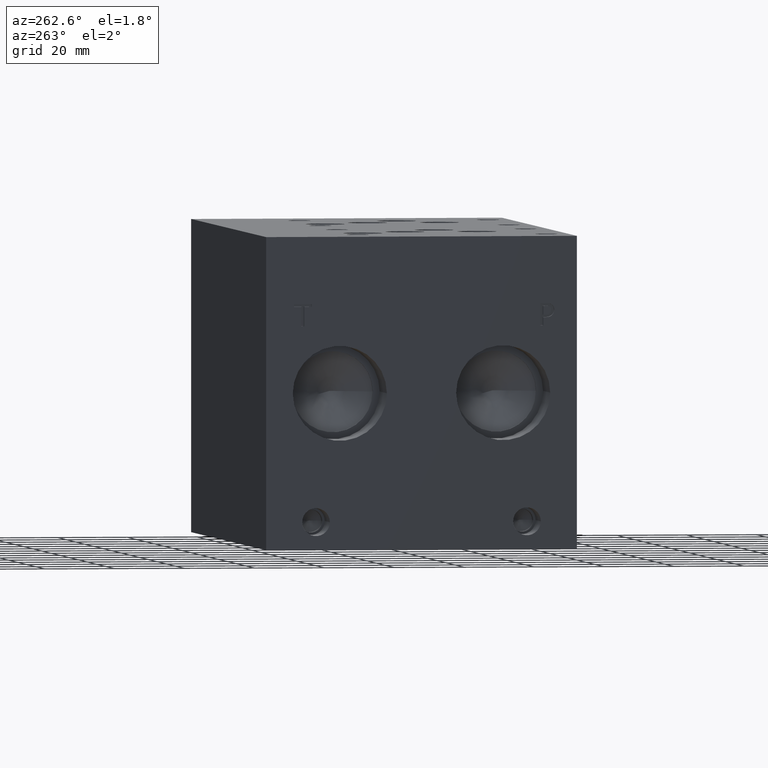
[diagram: clean part render]
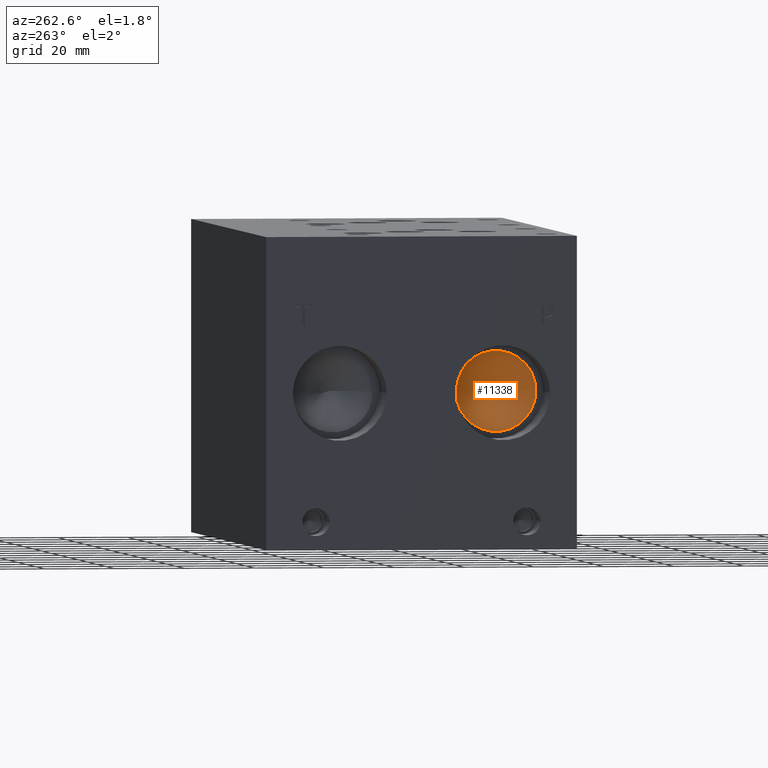
[diagram: same view with one face highlighted and labeled with its STEP entity id]
A machine part, auxiliary view. The second image highlights one B-rep face of the part: STEP entity #11338.
In plain terms, the highlighted conical surface has half-angle 60 deg.
Its self-contained STEP definition (entity closure, byte-faithful):
#66=CONICAL_SURFACE('',#11815,5.7531,1.0471975511966);
#129=CIRCLE('',#11816,11.5062);
#130=CIRCLE('',#11817,11.5062);
#1324=FACE_OUTER_BOUND('',#1968,.T.);
#1968=EDGE_LOOP('',(#9555,#9556,#9557,#9558));
#3102=LINE('',#19142,#4178);
#4178=VECTOR('',#13793,5.7531);
#5165=VERTEX_POINT('',#19138);
#5166=VERTEX_POINT('',#19139);
#5167=VERTEX_POINT('',#19141);
#6686=EDGE_CURVE('',#5165,#5166,#129,.T.);
#6687=EDGE_CURVE('',#5166,#5167,#3102,.T.);
#6688=EDGE_CURVE('',#5166,#5165,#130,.T.);
#9555=ORIENTED_EDGE('',*,*,#6686,.T.);
#9556=ORIENTED_EDGE('',*,*,#6687,.T.);
#9557=ORIENTED_EDGE('',*,*,#6687,.F.);
#9558=ORIENTED_EDGE('',*,*,#6688,.T.);
#11338=ADVANCED_FACE('',(#1324),#66,.F.);
#11815=AXIS2_PLACEMENT_3D('',#19137,#13789,#13790);
#11816=AXIS2_PLACEMENT_3D('',#19140,#13791,#13792);
#11817=AXIS2_PLACEMENT_3D('',#19143,#13794,#13795);
#13789=DIRECTION('center_axis',(-1.,0.,0.));
#13790=DIRECTION('ref_axis',(0.,1.,0.));
#13791=DIRECTION('center_axis',(-1.,0.,0.));
#13792=DIRECTION('ref_axis',(0.,1.,0.));
#13793=DIRECTION('',(0.5,0.866025403784439,-1.06057523872491E-16));
#13794=DIRECTION('center_axis',(-1.,0.,0.));
#13795=DIRECTION('ref_axis',(0.,1.,0.));
#19137=CARTESIAN_POINT('Origin',(19.8354638336748,21.082,44.45));
#19138=CARTESIAN_POINT('',(16.51391,32.5882,44.45));
#19139=CARTESIAN_POINT('',(16.51391,9.5758,44.45));
#19140=CARTESIAN_POINT('Origin',(16.51391,21.082,44.45));
#19141=CARTESIAN_POINT('',(23.1570176673497,21.082,44.45));
#19142=CARTESIAN_POINT('',(19.8354638336748,15.3289,44.45));
#19143=CARTESIAN_POINT('Origin',(16.51391,21.082,44.45));